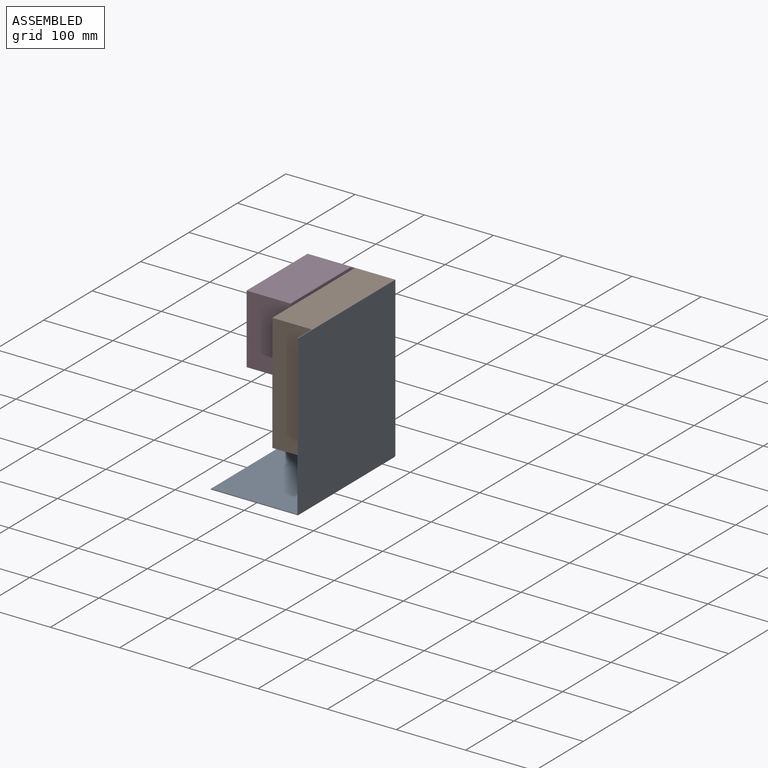
[diagram: assembled view]
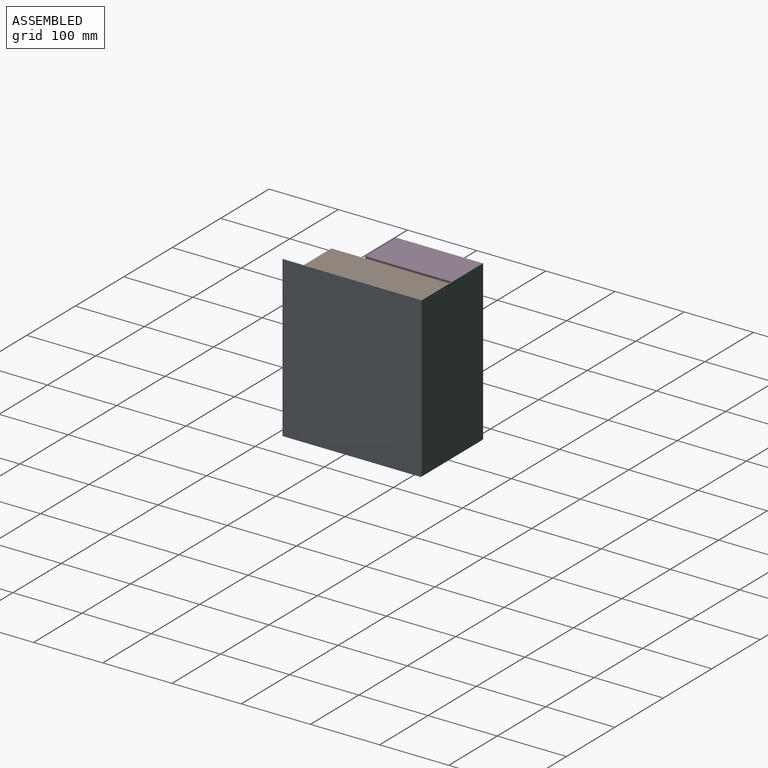
[diagram: assembled view, second angle]
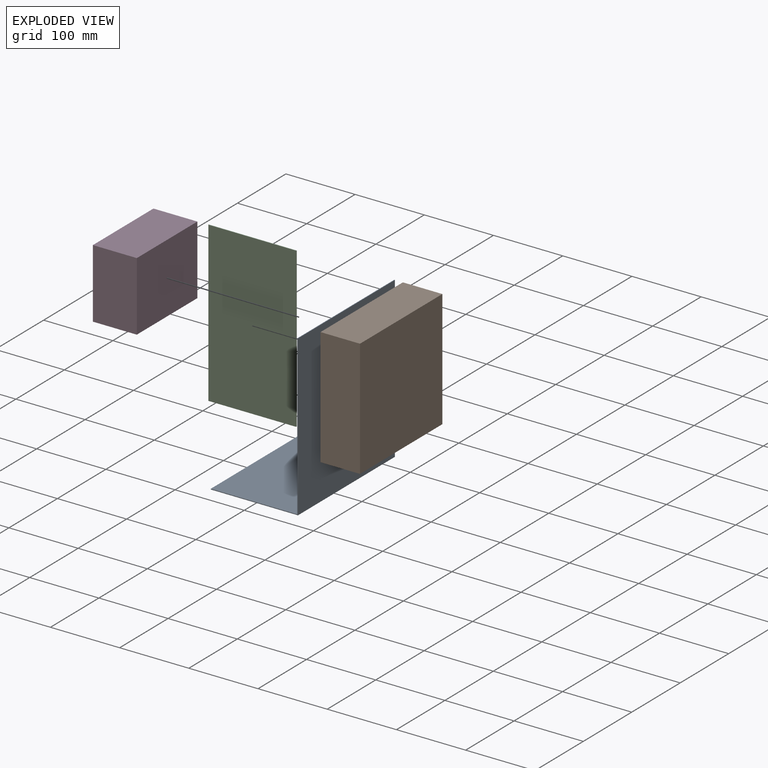
[diagram: exploded view]
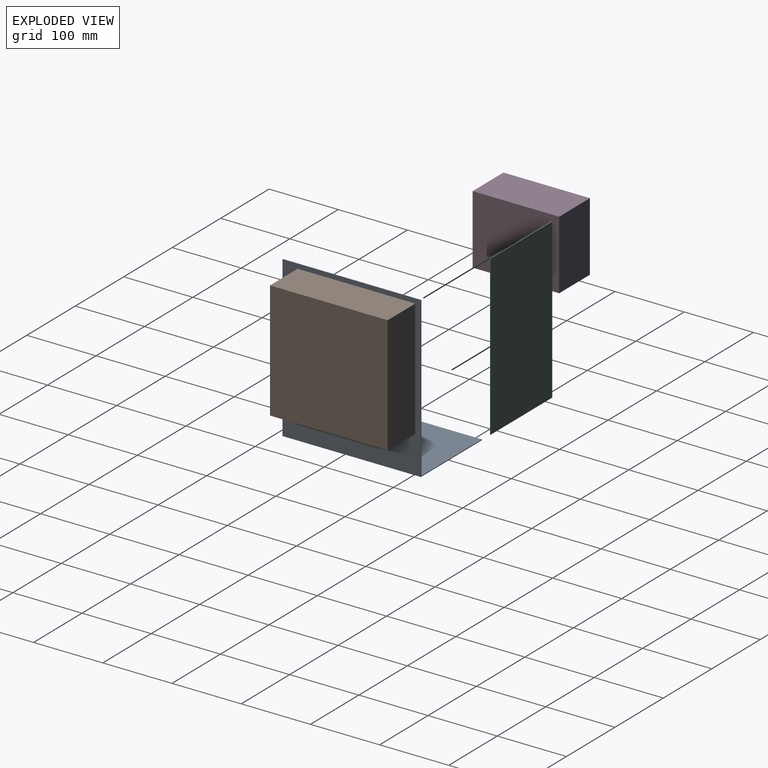
[diagram: exploded view, second angle]
ASSEMBLY  parts=4 mates=2
PART A: 8 faces, bbox 126x200x231 mm
  f0: plane 200x125mm, normal (0,0,1), area 25000mm2, adj f1,f5,f6,f7
  f1: plane 200x1mm, normal (-1,0,0), area 200mm2, adj f0,f2,f6,f7
  f2: plane 200x126mm, normal (0,0,-1), area 25200mm2, adj f1,f3,f6,f7
  f3: plane 231x200mm, normal (1,0,0), area 46200mm2, adj f2,f4,f6,f7
  f4: plane 200x1mm, normal (0,0,1), area 200mm2, adj f3,f5,f6,f7
  f5: plane 230x200mm, normal (-1,0,0), area 46000mm2, adj f0,f4,f6,f7
  f6: plane 231x126mm, normal (0,-1,0), area 356mm2, adj f0,f1,f2,f3,f4,f5
  f7: plane 231x126mm, normal (0,1,0), area 356mm2, adj f0,f1,f2,f3,f4,f5
PART B: 6 faces, bbox 170x57x170 mm
  f0: plane 170x57mm, normal (1,0,0), area 9690mm2, adj f1,f3,f4,f5
  f1: plane 170x57mm, normal (0,0,1), area 9690mm2, adj f0,f2,f4,f5
  f2: plane 170x57mm, normal (-1,0,0), area 9690mm2, adj f1,f3,f4,f5
  f3: plane 170x57mm, normal (0,0,-1), area 9690mm2, adj f0,f2,f4,f5
  f4: plane 170x170mm, normal (0,-1,0), area 28900mm2, adj f0,f1,f2,f3
  f5: plane 170x170mm, normal (0,1,0), area 28900mm2, adj f0,f1,f2,f3
PART C: 6 faces, bbox 127x1x230 mm
  f0: plane 230x127mm, normal (0,-1,0), area 29210mm2, adj f1,f3,f4,f5
  f1: plane 230x1mm, normal (1,0,0), area 230mm2, adj f0,f2,f4,f5
  f2: plane 230x127mm, normal (0,1,0), area 29210mm2, adj f1,f3,f4,f5
  f3: plane 230x1mm, normal (-1,0,0), area 230mm2, adj f0,f2,f4,f5
  f4: plane 127x1mm, normal (0,0,1), area 127mm2, adj f0,f1,f2,f3
  f5: plane 127x1mm, normal (0,0,-1), area 127mm2, adj f0,f1,f2,f3
PART D: 6 faces, bbox 125x100x63.5 mm
  f0: plane 100x63.5mm, normal (1,0,0), area 6350mm2, adj f1,f3,f4,f5
  f1: plane 125x63.5mm, normal (0,1,0), area 7937.5mm2, adj f0,f2,f4,f5
  f2: plane 100x63.5mm, normal (-1,0,0), area 6350mm2, adj f1,f3,f4,f5
  f3: plane 125x63.5mm, normal (0,-1,0), area 7937.5mm2, adj f0,f2,f4,f5
  f4: plane 125x100mm, normal (0,0,1), area 12500mm2, adj f0,f1,f2,f3
  f5: plane 125x100mm, normal (0,0,-1), area 12500mm2, adj f0,f1,f2,f3
PLACE A t=(2.87,16.07,45.8)mm
PLACE B rot(axis=(-0.58,-0.58,-0.58),120deg) t=(65.37,31.07,75.8)mm
PLACE C t=(2.87,16.07,45.8)mm
PLACE D rot(axis=(0.58,-0.58,-0.58),120deg) t=(3.12,53.57,110.8)mm
MATE fastened D.f2 <-> C.f0  axis (0,1,0) through (-28.63,116.07,110.8)mm
MATE fastened B.f5 <-> A.f5  axis (1,0,0) through (65.37,31.07,75.8)mm
